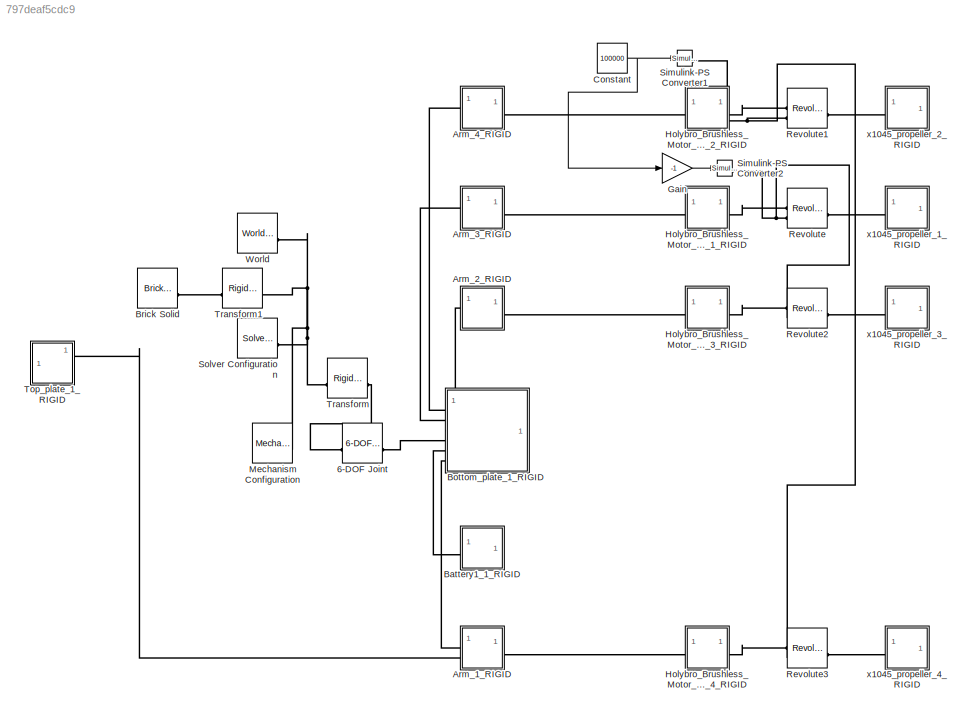
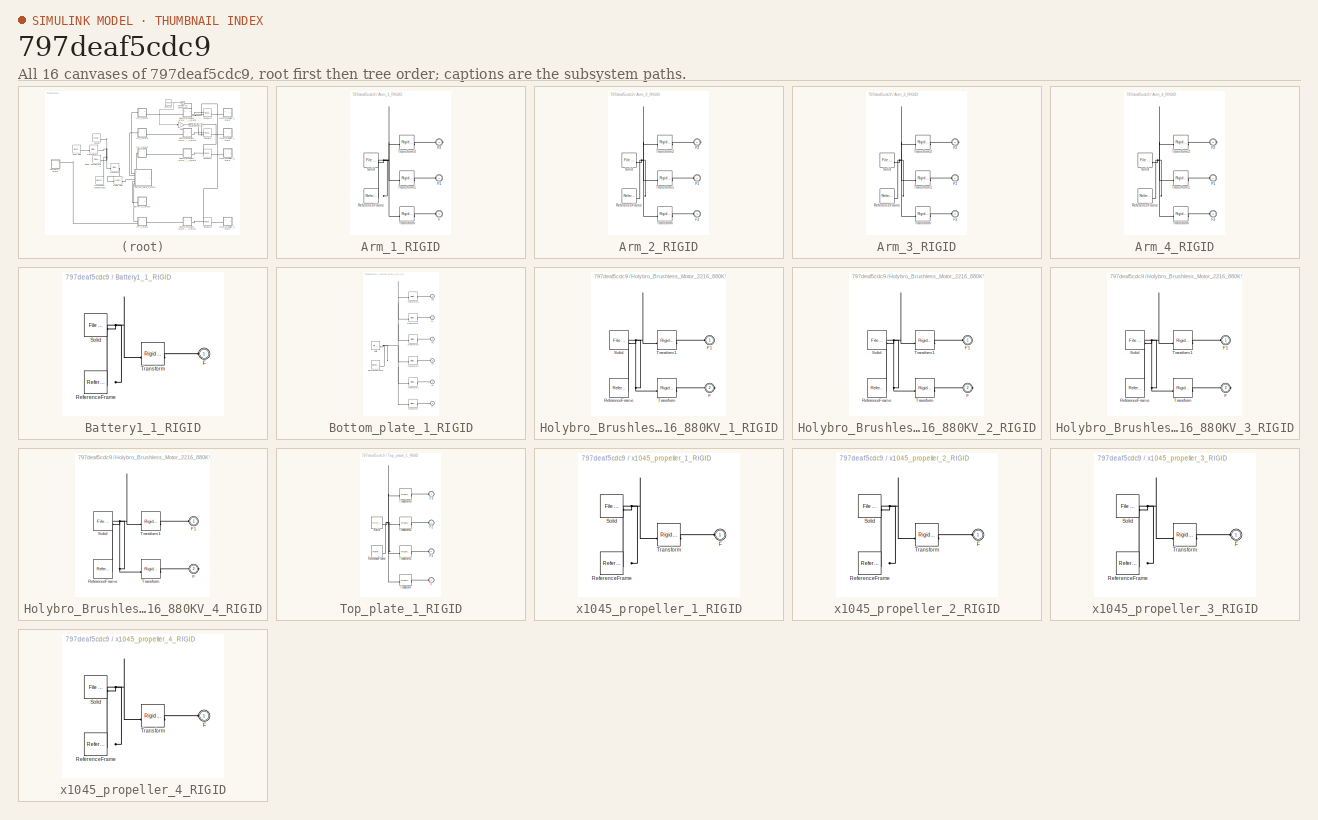
[diagram: thumbnail index - all 16 canvases of the model, root first then tree order]
MODEL slx_797deaf5cdc9
KIND model
CONFIG AbsTol = auto
CONFIG EnableMultiTasking = off
CONFIG FixedStep = auto
CONFIG MaxStep = auto
CONFIG MinStep = auto
CONFIG RelTol = 1e-3
CONFIG SampleTimeConstraint = Unconstrained
CONFIG SolverName = VariableStepAuto
CONFIG StartTime = 0.0
CONFIG StopTime = 10.0
WORKSPACE source: external: MATLAB File  (data not in archive)
BLOCK [Reference] 6-DOF Joint  REF=sm_lib/Joints/6-DOF Joint
  SourceBlock = sm_lib/Joints/6-DOF Joint
  SourceType = 6-DOF Joint
BLOCK [SubSystem] Arm_1_RIGID
BLOCK [PMIOPort] Arm_1_RIGID/F
  Port = 2
  Side = Left
BLOCK [PMIOPort] Arm_1_RIGID/F1
  Side = Left
BLOCK [PMIOPort] Arm_1_RIGID/F2
  Port = 3
  Side = Right
BLOCK [Reference] Arm_1_RIGID/ReferenceFrame  REF=sm_lib/Frames and
Transforms/Reference
Frame
  SourceBlock = sm_lib/Frames and\nTransforms/Reference\nFrame
  SourceType = Reference\nFrame
BLOCK [Reference] Arm_1_RIGID/Solid  REF=sm_lib/Body Elements/File Solid
  SourceBlock = sm_lib/Body Elements/File Solid
  SourceType = File Solid
BLOCK [Reference] Arm_1_RIGID/Transform  REF=sm_lib/Frames and
Transforms/Rigid
Transform
  SourceBlock = sm_lib/Frames and\nTransforms/Rigid\nTransform
  SourceType = Rigid\nTransform
BLOCK [Reference] Arm_1_RIGID/Transform1  REF=sm_lib/Frames and
Transforms/Rigid
Transform
  SourceBlock = sm_lib/Frames and\nTransforms/Rigid\nTransform
  SourceType = Rigid\nTransform
BLOCK [Reference] Arm_1_RIGID/Transform2  REF=sm_lib/Frames and
Transforms/Rigid
Transform
  SourceBlock = sm_lib/Frames and\nTransforms/Rigid\nTransform
  SourceType = Rigid\nTransform
BLOCK [SubSystem] Arm_2_RIGID
BLOCK [PMIOPort] Arm_2_RIGID/F1
  Side = Left
BLOCK [PMIOPort] Arm_2_RIGID/F2
  Port = 2
  Side = Right
BLOCK [PMIOPort] Arm_2_RIGID/F3
  Port = 3
  Side = Left
BLOCK [Reference] Arm_2_RIGID/ReferenceFrame  REF=sm_lib/Frames and
Transforms/Reference
Frame
  SourceBlock = sm_lib/Frames and\nTransforms/Reference\nFrame
  SourceType = Reference\nFrame
BLOCK [Reference] Arm_2_RIGID/Solid  REF=sm_lib/Body Elements/File Solid
  SourceBlock = sm_lib/Body Elements/File Solid
  SourceType = File Solid
BLOCK [Reference] Arm_2_RIGID/Transform  REF=sm_lib/Frames and
Transforms/Rigid
Transform
  SourceBlock = sm_lib/Frames and\nTransforms/Rigid\nTransform
  SourceType = Rigid\nTransform
BLOCK [Reference] Arm_2_RIGID/Transform1  REF=sm_lib/Frames and
Transforms/Rigid
Transform
  SourceBlock = sm_lib/Frames and\nTransforms/Rigid\nTransform
  SourceType = Rigid\nTransform
BLOCK [Reference] Arm_2_RIGID/Transform2  REF=sm_lib/Frames and
Transforms/Rigid
Transform
  SourceBlock = sm_lib/Frames and\nTransforms/Rigid\nTransform
  SourceType = Rigid\nTransform
BLOCK [SubSystem] Arm_3_RIGID
BLOCK [PMIOPort] Arm_3_RIGID/F1
  Side = Left
BLOCK [PMIOPort] Arm_3_RIGID/F2
  Port = 2
  Side = Right
BLOCK [PMIOPort] Arm_3_RIGID/F3
  Port = 3
  Side = Left
BLOCK [Reference] Arm_3_RIGID/ReferenceFrame  REF=sm_lib/Frames and
Transforms/Reference
Frame
  SourceBlock = sm_lib/Frames and\nTransforms/Reference\nFrame
  SourceType = Reference\nFrame
BLOCK [Reference] Arm_3_RIGID/Solid  REF=sm_lib/Body Elements/File Solid
  SourceBlock = sm_lib/Body Elements/File Solid
  SourceType = File Solid
BLOCK [Reference] Arm_3_RIGID/Transform  REF=sm_lib/Frames and
Transforms/Rigid
Transform
  SourceBlock = sm_lib/Frames and\nTransforms/Rigid\nTransform
  SourceType = Rigid\nTransform
BLOCK [Reference] Arm_3_RIGID/Transform1  REF=sm_lib/Frames and
Transforms/Rigid
Transform
  SourceBlock = sm_lib/Frames and\nTransforms/Rigid\nTransform
  SourceType = Rigid\nTransform
BLOCK [Reference] Arm_3_RIGID/Transform2  REF=sm_lib/Frames and
Transforms/Rigid
Transform
  SourceBlock = sm_lib/Frames and\nTransforms/Rigid\nTransform
  SourceType = Rigid\nTransform
BLOCK [SubSystem] Arm_4_RIGID
BLOCK [PMIOPort] Arm_4_RIGID/F1
  Side = Left
BLOCK [PMIOPort] Arm_4_RIGID/F2
  Port = 2
  Side = Right
BLOCK [PMIOPort] Arm_4_RIGID/F3
  Port = 3
  Side = Left
BLOCK [Reference] Arm_4_RIGID/ReferenceFrame  REF=sm_lib/Frames and
Transforms/Reference
Frame
  SourceBlock = sm_lib/Frames and\nTransforms/Reference\nFrame
  SourceType = Reference\nFrame
BLOCK [Reference] Arm_4_RIGID/Solid  REF=sm_lib/Body Elements/File Solid
  SourceBlock = sm_lib/Body Elements/File Solid
  SourceType = File Solid
BLOCK [Reference] Arm_4_RIGID/Transform  REF=sm_lib/Frames and
Transforms/Rigid
Transform
  SourceBlock = sm_lib/Frames and\nTransforms/Rigid\nTransform
  SourceType = Rigid\nTransform
BLOCK [Reference] Arm_4_RIGID/Transform1  REF=sm_lib/Frames and
Transforms/Rigid
Transform
  SourceBlock = sm_lib/Frames and\nTransforms/Rigid\nTransform
  SourceType = Rigid\nTransform
BLOCK [Reference] Arm_4_RIGID/Transform2  REF=sm_lib/Frames and
Transforms/Rigid
Transform
  SourceBlock = sm_lib/Frames and\nTransforms/Rigid\nTransform
  SourceType = Rigid\nTransform
BLOCK [SubSystem] Battery1_1_RIGID
BLOCK [PMIOPort] Battery1_1_RIGID/F
  Side = Left
BLOCK [Reference] Battery1_1_RIGID/ReferenceFrame  REF=sm_lib/Frames and
Transforms/Reference
Frame
  SourceBlock = sm_lib/Frames and\nTransforms/Reference\nFrame
  SourceType = Reference\nFrame
BLOCK [Reference] Battery1_1_RIGID/Solid  REF=sm_lib/Body Elements/File Solid
  SourceBlock = sm_lib/Body Elements/File Solid
  SourceType = File Solid
BLOCK [Reference] Battery1_1_RIGID/Transform  REF=sm_lib/Frames and
Transforms/Rigid
Transform
  SourceBlock = sm_lib/Frames and\nTransforms/Rigid\nTransform
  SourceType = Rigid\nTransform
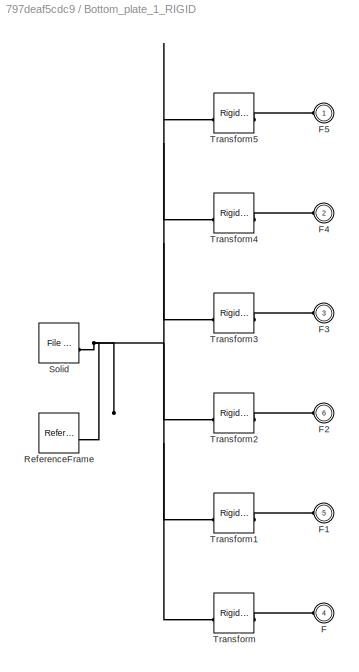
BLOCK [SubSystem] Bottom_plate_1_RIGID
BLOCK [PMIOPort] Bottom_plate_1_RIGID/F
  Port = 4
  Side = Left
BLOCK [PMIOPort] Bottom_plate_1_RIGID/F1
  Port = 5
  Side = Left
BLOCK [PMIOPort] Bottom_plate_1_RIGID/F2
  Port = 6
  Side = Left
BLOCK [PMIOPort] Bottom_plate_1_RIGID/F3
  Port = 3
  Side = Left
BLOCK [PMIOPort] Bottom_plate_1_RIGID/F4
  Port = 2
  Side = Left
BLOCK [PMIOPort] Bottom_plate_1_RIGID/F5
  Side = Left
BLOCK [Reference] Bottom_plate_1_RIGID/ReferenceFrame  REF=sm_lib/Frames and
Transforms/Reference
Frame
  SourceBlock = sm_lib/Frames and\nTransforms/Reference\nFrame
  SourceType = Reference\nFrame
BLOCK [Reference] Bottom_plate_1_RIGID/Solid  REF=sm_lib/Body Elements/File Solid
  SourceBlock = sm_lib/Body Elements/File Solid
  SourceType = File Solid
BLOCK [Reference] Bottom_plate_1_RIGID/Transform  REF=sm_lib/Frames and
Transforms/Rigid
Transform
  SourceBlock = sm_lib/Frames and\nTransforms/Rigid\nTransform
  SourceType = Rigid\nTransform
BLOCK [Reference] Bottom_plate_1_RIGID/Transform1  REF=sm_lib/Frames and
Transforms/Rigid
Transform
  SourceBlock = sm_lib/Frames and\nTransforms/Rigid\nTransform
  SourceType = Rigid\nTransform
BLOCK [Reference] Bottom_plate_1_RIGID/Transform2  REF=sm_lib/Frames and
Transforms/Rigid
Transform
  SourceBlock = sm_lib/Frames and\nTransforms/Rigid\nTransform
  SourceType = Rigid\nTransform
BLOCK [Reference] Bottom_plate_1_RIGID/Transform3  REF=sm_lib/Frames and
Transforms/Rigid
Transform
  SourceBlock = sm_lib/Frames and\nTransforms/Rigid\nTransform
  SourceType = Rigid\nTransform
BLOCK [Reference] Bottom_plate_1_RIGID/Transform4  REF=sm_lib/Frames and
Transforms/Rigid
Transform
  SourceBlock = sm_lib/Frames and\nTransforms/Rigid\nTransform
  SourceType = Rigid\nTransform
BLOCK [Reference] Bottom_plate_1_RIGID/Transform5  REF=sm_lib/Frames and
Transforms/Rigid
Transform
  SourceBlock = sm_lib/Frames and\nTransforms/Rigid\nTransform
  SourceType = Rigid\nTransform
BLOCK [Reference] Brick Solid  REF=sm_lib/Body Elements/Brick Solid
  SourceBlock = sm_lib/Body Elements/Brick Solid
  SourceType = Brick Solid
BLOCK [Constant] Constant
  Value = 100000
BLOCK [Gain] Gain
  Gain = -1
BLOCK [SubSystem] Holybro_Brushless_Motor_2216_880KV_1_RIGID
BLOCK [PMIOPort] Holybro_Brushless_Motor_2216_880KV_1_RIGID/F
  Port = 2
  Side = Right
BLOCK [PMIOPort] Holybro_Brushless_Motor_2216_880KV_1_RIGID/F1
  Side = Left
BLOCK [Reference] Holybro_Brushless_Motor_2216_880KV_1_RIGID/ReferenceFrame  REF=sm_lib/Frames and
Transforms/Reference
Frame
  SourceBlock = sm_lib/Frames and\nTransforms/Reference\nFrame
  SourceType = Reference\nFrame
BLOCK [Reference] Holybro_Brushless_Motor_2216_880KV_1_RIGID/Solid  REF=sm_lib/Body Elements/File Solid
  SourceBlock = sm_lib/Body Elements/File Solid
  SourceType = File Solid
BLOCK [Reference] Holybro_Brushless_Motor_2216_880KV_1_RIGID/Transform  REF=sm_lib/Frames and
Transforms/Rigid
Transform
  SourceBlock = sm_lib/Frames and\nTransforms/Rigid\nTransform
  SourceType = Rigid\nTransform
BLOCK [Reference] Holybro_Brushless_Motor_2216_880KV_1_RIGID/Transform1  REF=sm_lib/Frames and
Transforms/Rigid
Transform
  SourceBlock = sm_lib/Frames and\nTransforms/Rigid\nTransform
  SourceType = Rigid\nTransform
BLOCK [SubSystem] Holybro_Brushless_Motor_2216_880KV_2_RIGID
BLOCK [PMIOPort] Holybro_Brushless_Motor_2216_880KV_2_RIGID/F
  Port = 2
  Side = Right
BLOCK [PMIOPort] Holybro_Brushless_Motor_2216_880KV_2_RIGID/F1
  Side = Left
BLOCK [Reference] Holybro_Brushless_Motor_2216_880KV_2_RIGID/ReferenceFrame  REF=sm_lib/Frames and
Transforms/Reference
Frame
  SourceBlock = sm_lib/Frames and\nTransforms/Reference\nFrame
  SourceType = Reference\nFrame
BLOCK [Reference] Holybro_Brushless_Motor_2216_880KV_2_RIGID/Solid  REF=sm_lib/Body Elements/File Solid
  SourceBlock = sm_lib/Body Elements/File Solid
  SourceType = File Solid
BLOCK [Reference] Holybro_Brushless_Motor_2216_880KV_2_RIGID/Transform  REF=sm_lib/Frames and
Transforms/Rigid
Transform
  SourceBlock = sm_lib/Frames and\nTransforms/Rigid\nTransform
  SourceType = Rigid\nTransform
BLOCK [Reference] Holybro_Brushless_Motor_2216_880KV_2_RIGID/Transform1  REF=sm_lib/Frames and
Transforms/Rigid
Transform
  SourceBlock = sm_lib/Frames and\nTransforms/Rigid\nTransform
  SourceType = Rigid\nTransform
BLOCK [SubSystem] Holybro_Brushless_Motor_2216_880KV_3_RIGID
BLOCK [PMIOPort] Holybro_Brushless_Motor_2216_880KV_3_RIGID/F
  Port = 2
  Side = Right
BLOCK [PMIOPort] Holybro_Brushless_Motor_2216_880KV_3_RIGID/F1
  Side = Left
BLOCK [Reference] Holybro_Brushless_Motor_2216_880KV_3_RIGID/ReferenceFrame  REF=sm_lib/Frames and
Transforms/Reference
Frame
  SourceBlock = sm_lib/Frames and\nTransforms/Reference\nFrame
  SourceType = Reference\nFrame
BLOCK [Reference] Holybro_Brushless_Motor_2216_880KV_3_RIGID/Solid  REF=sm_lib/Body Elements/File Solid
  SourceBlock = sm_lib/Body Elements/File Solid
  SourceType = File Solid
BLOCK [Reference] Holybro_Brushless_Motor_2216_880KV_3_RIGID/Transform  REF=sm_lib/Frames and
Transforms/Rigid
Transform
  SourceBlock = sm_lib/Frames and\nTransforms/Rigid\nTransform
  SourceType = Rigid\nTransform
BLOCK [Reference] Holybro_Brushless_Motor_2216_880KV_3_RIGID/Transform1  REF=sm_lib/Frames and
Transforms/Rigid
Transform
  SourceBlock = sm_lib/Frames and\nTransforms/Rigid\nTransform
  SourceType = Rigid\nTransform
BLOCK [SubSystem] Holybro_Brushless_Motor_2216_880KV_4_RIGID
BLOCK [PMIOPort] Holybro_Brushless_Motor_2216_880KV_4_RIGID/F
  Port = 2
  Side = Right
BLOCK [PMIOPort] Holybro_Brushless_Motor_2216_880KV_4_RIGID/F1
  Side = Left
BLOCK [Reference] Holybro_Brushless_Motor_2216_880KV_4_RIGID/ReferenceFrame  REF=sm_lib/Frames and
Transforms/Reference
Frame
  SourceBlock = sm_lib/Frames and\nTransforms/Reference\nFrame
  SourceType = Reference\nFrame
BLOCK [Reference] Holybro_Brushless_Motor_2216_880KV_4_RIGID/Solid  REF=sm_lib/Body Elements/File Solid
  SourceBlock = sm_lib/Body Elements/File Solid
  SourceType = File Solid
BLOCK [Reference] Holybro_Brushless_Motor_2216_880KV_4_RIGID/Transform  REF=sm_lib/Frames and
Transforms/Rigid
Transform
  SourceBlock = sm_lib/Frames and\nTransforms/Rigid\nTransform
  SourceType = Rigid\nTransform
BLOCK [Reference] Holybro_Brushless_Motor_2216_880KV_4_RIGID/Transform1  REF=sm_lib/Frames and
Transforms/Rigid
Transform
  SourceBlock = sm_lib/Frames and\nTransforms/Rigid\nTransform
  SourceType = Rigid\nTransform
BLOCK [Reference] Mechanism Configuration  REF=sm_lib/Utilities/Mechanism
Configuration
  SourceBlock = sm_lib/Utilities/Mechanism\nConfiguration
  SourceType = Mechanism\nConfiguration
BLOCK [Reference] Revolute  REF=sm_lib/Joints/Revolute Joint
  SourceBlock = sm_lib/Joints/Revolute Joint
  SourceType = Revolute Joint
BLOCK [Reference] Revolute1  REF=sm_lib/Joints/Revolute Joint
  SourceBlock = sm_lib/Joints/Revolute Joint
  SourceType = Revolute Joint
BLOCK [Reference] Revolute2  REF=sm_lib/Joints/Revolute Joint
  SourceBlock = sm_lib/Joints/Revolute Joint
  SourceType = Revolute Joint
BLOCK [Reference] Revolute3  REF=sm_lib/Joints/Revolute Joint
  SourceBlock = sm_lib/Joints/Revolute Joint
  SourceType = Revolute Joint
BLOCK [Reference] Simulink-PS Converter1  REF=nesl_utility/Simulink-PS
Converter
  SourceBlock = nesl_utility/Simulink-PS\nConverter
  SourceType = Simulink-PS\nConverter
BLOCK [Reference] Simulink-PS Converter2  REF=nesl_utility/Simulink-PS
Converter
  SourceBlock = nesl_utility/Simulink-PS\nConverter
  SourceType = Simulink-PS\nConverter
BLOCK [Reference] Solver Configuration  REF=nesl_utility/Solver
Configuration
  SourceBlock = nesl_utility/Solver\nConfiguration
  SourceType = Solver\nConfiguration
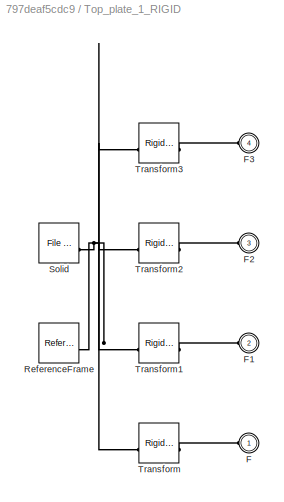
BLOCK [SubSystem] Top_plate_1_RIGID
  NameLocation = top
BLOCK [PMIOPort] Top_plate_1_RIGID/F
  Side = Left
BLOCK [PMIOPort] Top_plate_1_RIGID/F1
  Port = 2
  Side = Left
BLOCK [PMIOPort] Top_plate_1_RIGID/F2
  Port = 3
  Side = Left
BLOCK [PMIOPort] Top_plate_1_RIGID/F3
  Port = 4
  Side = Left
BLOCK [Reference] Top_plate_1_RIGID/ReferenceFrame  REF=sm_lib/Frames and
Transforms/Reference
Frame
  SourceBlock = sm_lib/Frames and\nTransforms/Reference\nFrame
  SourceType = Reference\nFrame
BLOCK [Reference] Top_plate_1_RIGID/Solid  REF=sm_lib/Body Elements/File Solid
  SourceBlock = sm_lib/Body Elements/File Solid
  SourceType = File Solid
BLOCK [Reference] Top_plate_1_RIGID/Transform  REF=sm_lib/Frames and
Transforms/Rigid
Transform
  SourceBlock = sm_lib/Frames and\nTransforms/Rigid\nTransform
  SourceType = Rigid\nTransform
BLOCK [Reference] Top_plate_1_RIGID/Transform1  REF=sm_lib/Frames and
Transforms/Rigid
Transform
  SourceBlock = sm_lib/Frames and\nTransforms/Rigid\nTransform
  SourceType = Rigid\nTransform
BLOCK [Reference] Top_plate_1_RIGID/Transform2  REF=sm_lib/Frames and
Transforms/Rigid
Transform
  SourceBlock = sm_lib/Frames and\nTransforms/Rigid\nTransform
  SourceType = Rigid\nTransform
BLOCK [Reference] Top_plate_1_RIGID/Transform3  REF=sm_lib/Frames and
Transforms/Rigid
Transform
  SourceBlock = sm_lib/Frames and\nTransforms/Rigid\nTransform
  SourceType = Rigid\nTransform
BLOCK [Reference] Transform  REF=sm_lib/Frames and
Transforms/Rigid
Transform
  SourceBlock = sm_lib/Frames and\nTransforms/Rigid\nTransform
  SourceType = Rigid\nTransform
BLOCK [Reference] Transform1  REF=sm_lib/Frames and
Transforms/Rigid
Transform
  SourceBlock = sm_lib/Frames and\nTransforms/Rigid\nTransform
  SourceType = Rigid\nTransform
BLOCK [Reference] World  REF=sm_lib/Frames and
Transforms/World Frame
  SourceBlock = sm_lib/Frames and\nTransforms/World Frame
  SourceType = World Frame
BLOCK [SubSystem] x1045_propeller_1_RIGID
BLOCK [PMIOPort] x1045_propeller_1_RIGID/F
  Side = Left
BLOCK [Reference] x1045_propeller_1_RIGID/ReferenceFrame  REF=sm_lib/Frames and
Transforms/Reference
Frame
  SourceBlock = sm_lib/Frames and\nTransforms/Reference\nFrame
  SourceType = Reference\nFrame
BLOCK [Reference] x1045_propeller_1_RIGID/Solid  REF=sm_lib/Body Elements/File Solid
  SourceBlock = sm_lib/Body Elements/File Solid
  SourceType = File Solid
BLOCK [Reference] x1045_propeller_1_RIGID/Transform  REF=sm_lib/Frames and
Transforms/Rigid
Transform
  SourceBlock = sm_lib/Frames and\nTransforms/Rigid\nTransform
  SourceType = Rigid\nTransform
BLOCK [SubSystem] x1045_propeller_2_RIGID
BLOCK [PMIOPort] x1045_propeller_2_RIGID/F
  Side = Left
BLOCK [Reference] x1045_propeller_2_RIGID/ReferenceFrame  REF=sm_lib/Frames and
Transforms/Reference
Frame
  SourceBlock = sm_lib/Frames and\nTransforms/Reference\nFrame
  SourceType = Reference\nFrame
BLOCK [Reference] x1045_propeller_2_RIGID/Solid  REF=sm_lib/Body Elements/File Solid
  SourceBlock = sm_lib/Body Elements/File Solid
  SourceType = File Solid
BLOCK [Reference] x1045_propeller_2_RIGID/Transform  REF=sm_lib/Frames and
Transforms/Rigid
Transform
  SourceBlock = sm_lib/Frames and\nTransforms/Rigid\nTransform
  SourceType = Rigid\nTransform
BLOCK [SubSystem] x1045_propeller_3_RIGID
BLOCK [PMIOPort] x1045_propeller_3_RIGID/F
  Side = Left
BLOCK [Reference] x1045_propeller_3_RIGID/ReferenceFrame  REF=sm_lib/Frames and
Transforms/Reference
Frame
  SourceBlock = sm_lib/Frames and\nTransforms/Reference\nFrame
  SourceType = Reference\nFrame
BLOCK [Reference] x1045_propeller_3_RIGID/Solid  REF=sm_lib/Body Elements/File Solid
  SourceBlock = sm_lib/Body Elements/File Solid
  SourceType = File Solid
BLOCK [Reference] x1045_propeller_3_RIGID/Transform  REF=sm_lib/Frames and
Transforms/Rigid
Transform
  SourceBlock = sm_lib/Frames and\nTransforms/Rigid\nTransform
  SourceType = Rigid\nTransform
BLOCK [SubSystem] x1045_propeller_4_RIGID
BLOCK [PMIOPort] x1045_propeller_4_RIGID/F
  Side = Left
BLOCK [Reference] x1045_propeller_4_RIGID/ReferenceFrame  REF=sm_lib/Frames and
Transforms/Reference
Frame
  SourceBlock = sm_lib/Frames and\nTransforms/Reference\nFrame
  SourceType = Reference\nFrame
BLOCK [Reference] x1045_propeller_4_RIGID/Solid  REF=sm_lib/Body Elements/File Solid
  SourceBlock = sm_lib/Body Elements/File Solid
  SourceType = File Solid
BLOCK [Reference] x1045_propeller_4_RIGID/Transform  REF=sm_lib/Frames and
Transforms/Rigid
Transform
  SourceBlock = sm_lib/Frames and\nTransforms/Rigid\nTransform
  SourceType = Rigid\nTransform
NET Constant:1 -> Gain:1, Simulink-PS Converter1:1
LINE Gain:1 -> Simulink-PS Converter2:1
PLINE 6-DOF Joint:LConn1 -- Transform:RConn1
PLINE 6-DOF Joint:RConn1 -- Bottom_plate_1_RIGID:LConn4
PLINE Arm_1_RIGID/F1:RConn1 -- Arm_1_RIGID/Transform1:RConn1
PLINE Arm_1_RIGID/F2:RConn1 -- Arm_1_RIGID/Transform2:RConn1
PLINE Arm_1_RIGID/F:RConn1 -- Arm_1_RIGID/Transform:RConn1
PNET net1: Arm_1_RIGID/ReferenceFrame:RConn1 -- Arm_1_RIGID/Solid:RConn1 -- Arm_1_RIGID/Transform1:LConn1 -- Arm_1_RIGID/Transform2:LConn1 -- Arm_1_RIGID/Transform:LConn1
PLINE Arm_1_RIGID:LConn1 -- Bottom_plate_1_RIGID:LConn6
PLINE Arm_1_RIGID:LConn2 -- Top_plate_1_RIGID:LConn1
PLINE Arm_1_RIGID:RConn1 -- Holybro_Brushless_Motor_2216_880KV_4_RIGID:LConn1
PLINE Arm_2_RIGID/F1:RConn1 -- Arm_2_RIGID/Transform1:RConn1
PLINE Arm_2_RIGID/F2:RConn1 -- Arm_2_RIGID/Transform2:RConn1
PLINE Arm_2_RIGID/F3:RConn1 -- Arm_2_RIGID/Transform:RConn1
PNET net2: Arm_2_RIGID/ReferenceFrame:RConn1 -- Arm_2_RIGID/Solid:RConn1 -- Arm_2_RIGID/Transform1:LConn1 -- Arm_2_RIGID/Transform2:LConn1 -- Arm_2_RIGID/Transform:LConn1
PLINE Arm_2_RIGID:LConn1 -- Bottom_plate_1_RIGID:LConn3
PLINE Arm_2_RIGID:RConn1 -- Holybro_Brushless_Motor_2216_880KV_3_RIGID:LConn1
PLINE Arm_3_RIGID/F1:RConn1 -- Arm_3_RIGID/Transform1:RConn1
PLINE Arm_3_RIGID/F2:RConn1 -- Arm_3_RIGID/Transform2:RConn1
PLINE Arm_3_RIGID/F3:RConn1 -- Arm_3_RIGID/Transform:RConn1
PNET net3: Arm_3_RIGID/ReferenceFrame:RConn1 -- Arm_3_RIGID/Solid:RConn1 -- Arm_3_RIGID/Transform1:LConn1 -- Arm_3_RIGID/Transform2:LConn1 -- Arm_3_RIGID/Transform:LConn1
PLINE Arm_3_RIGID:LConn1 -- Bottom_plate_1_RIGID:LConn2
PLINE Arm_3_RIGID:RConn1 -- Holybro_Brushless_Motor_2216_880KV_1_RIGID:LConn1
PLINE Arm_4_RIGID/F1:RConn1 -- Arm_4_RIGID/Transform1:RConn1
PLINE Arm_4_RIGID/F2:RConn1 -- Arm_4_RIGID/Transform2:RConn1
PLINE Arm_4_RIGID/F3:RConn1 -- Arm_4_RIGID/Transform:RConn1
PNET net4: Arm_4_RIGID/ReferenceFrame:RConn1 -- Arm_4_RIGID/Solid:RConn1 -- Arm_4_RIGID/Transform1:LConn1 -- Arm_4_RIGID/Transform2:LConn1 -- Arm_4_RIGID/Transform:LConn1
PLINE Arm_4_RIGID:LConn1 -- Bottom_plate_1_RIGID:LConn1
PLINE Arm_4_RIGID:RConn1 -- Holybro_Brushless_Motor_2216_880KV_2_RIGID:LConn1
PLINE Battery1_1_RIGID/F:RConn1 -- Battery1_1_RIGID/Transform:RConn1
PNET net5: Battery1_1_RIGID/ReferenceFrame:RConn1 -- Battery1_1_RIGID/Solid:RConn1 -- Battery1_1_RIGID/Transform:LConn1
PLINE Battery1_1_RIGID:LConn1 -- Bottom_plate_1_RIGID:LConn5
PLINE Bottom_plate_1_RIGID/F1:RConn1 -- Bottom_plate_1_RIGID/Transform1:RConn1
PLINE Bottom_plate_1_RIGID/F2:RConn1 -- Bottom_plate_1_RIGID/Transform2:RConn1
PLINE Bottom_plate_1_RIGID/F3:RConn1 -- Bottom_plate_1_RIGID/Transform3:RConn1
PLINE Bottom_plate_1_RIGID/F4:RConn1 -- Bottom_plate_1_RIGID/Transform4:RConn1
PLINE Bottom_plate_1_RIGID/F5:RConn1 -- Bottom_plate_1_RIGID/Transform5:RConn1
PLINE Bottom_plate_1_RIGID/F:RConn1 -- Bottom_plate_1_RIGID/Transform:RConn1
PNET net6: Bottom_plate_1_RIGID/ReferenceFrame:RConn1 -- Bottom_plate_1_RIGID/Solid:RConn1 -- Bottom_plate_1_RIGID/Transform1:LConn1 -- Bottom_plate_1_RIGID/Transform2:LConn1 -- Bottom_plate_1_RIGID/Transform3:LConn1 -- Bottom_plate_1_RIGID/Transform4:LConn1 -- Bottom_plate_1_RIGID/Transform5:LConn1 -- Bottom_plate_1_RIGID/Transform:LConn1
PLINE Brick Solid:RConn1 -- Transform1:LConn1
PLINE Holybro_Brushless_Motor_2216_880KV_1_RIGID/F1:RConn1 -- Holybro_Brushless_Motor_2216_880KV_1_RIGID/Transform1:RConn1
PLINE Holybro_Brushless_Motor_2216_880KV_1_RIGID/F:RConn1 -- Holybro_Brushless_Motor_2216_880KV_1_RIGID/Transform:RConn1
PNET net7: Holybro_Brushless_Motor_2216_880KV_1_RIGID/ReferenceFrame:RConn1 -- Holybro_Brushless_Motor_2216_880KV_1_RIGID/Solid:RConn1 -- Holybro_Brushless_Motor_2216_880KV_1_RIGID/Transform1:LConn1 -- Holybro_Brushless_Motor_2216_880KV_1_RIGID/Transform:LConn1
PLINE Holybro_Brushless_Motor_2216_880KV_1_RIGID:RConn1 -- Revolute:LConn1
PLINE Holybro_Brushless_Motor_2216_880KV_2_RIGID/F1:RConn1 -- Holybro_Brushless_Motor_2216_880KV_2_RIGID/Transform1:RConn1
PLINE Holybro_Brushless_Motor_2216_880KV_2_RIGID/F:RConn1 -- Holybro_Brushless_Motor_2216_880KV_2_RIGID/Transform:RConn1
PNET net8: Holybro_Brushless_Motor_2216_880KV_2_RIGID/ReferenceFrame:RConn1 -- Holybro_Brushless_Motor_2216_880KV_2_RIGID/Solid:RConn1 -- Holybro_Brushless_Motor_2216_880KV_2_RIGID/Transform1:LConn1 -- Holybro_Brushless_Motor_2216_880KV_2_RIGID/Transform:LConn1
PLINE Holybro_Brushless_Motor_2216_880KV_2_RIGID:RConn1 -- Revolute1:LConn1
PLINE Holybro_Brushless_Motor_2216_880KV_3_RIGID/F1:RConn1 -- Holybro_Brushless_Motor_2216_880KV_3_RIGID/Transform1:RConn1
PLINE Holybro_Brushless_Motor_2216_880KV_3_RIGID/F:RConn1 -- Holybro_Brushless_Motor_2216_880KV_3_RIGID/Transform:RConn1
PNET net9: Holybro_Brushless_Motor_2216_880KV_3_RIGID/ReferenceFrame:RConn1 -- Holybro_Brushless_Motor_2216_880KV_3_RIGID/Solid:RConn1 -- Holybro_Brushless_Motor_2216_880KV_3_RIGID/Transform1:LConn1 -- Holybro_Brushless_Motor_2216_880KV_3_RIGID/Transform:LConn1
PLINE Holybro_Brushless_Motor_2216_880KV_3_RIGID:RConn1 -- Revolute2:LConn1
PLINE Holybro_Brushless_Motor_2216_880KV_4_RIGID/F1:RConn1 -- Holybro_Brushless_Motor_2216_880KV_4_RIGID/Transform1:RConn1
PLINE Holybro_Brushless_Motor_2216_880KV_4_RIGID/F:RConn1 -- Holybro_Brushless_Motor_2216_880KV_4_RIGID/Transform:RConn1
PNET net10: Holybro_Brushless_Motor_2216_880KV_4_RIGID/ReferenceFrame:RConn1 -- Holybro_Brushless_Motor_2216_880KV_4_RIGID/Solid:RConn1 -- Holybro_Brushless_Motor_2216_880KV_4_RIGID/Transform1:LConn1 -- Holybro_Brushless_Motor_2216_880KV_4_RIGID/Transform:LConn1
PLINE Holybro_Brushless_Motor_2216_880KV_4_RIGID:RConn1 -- Revolute3:LConn1
PNET net11: Mechanism Configuration:RConn1 -- Solver Configuration:RConn1 -- Transform1:RConn1 -- Transform:LConn1 -- World:RConn1
PNET net12: Revolute1:LConn2 -- Revolute3:LConn2 -- Simulink-PS Converter1:RConn1
PLINE Revolute1:RConn1 -- x1045_propeller_2_RIGID:LConn1
PNET net13: Revolute2:LConn2 -- Revolute:LConn2 -- Simulink-PS Converter2:RConn1
PLINE Revolute2:RConn1 -- x1045_propeller_3_RIGID:LConn1
PLINE Revolute3:RConn1 -- x1045_propeller_4_RIGID:LConn1
PLINE Revolute:RConn1 -- x1045_propeller_1_RIGID:LConn1
PLINE Top_plate_1_RIGID/F1:RConn1 -- Top_plate_1_RIGID/Transform1:RConn1
PLINE Top_plate_1_RIGID/F2:RConn1 -- Top_plate_1_RIGID/Transform2:RConn1
PLINE Top_plate_1_RIGID/F3:RConn1 -- Top_plate_1_RIGID/Transform3:RConn1
PLINE Top_plate_1_RIGID/F:RConn1 -- Top_plate_1_RIGID/Transform:RConn1
PNET net14: Top_plate_1_RIGID/ReferenceFrame:RConn1 -- Top_plate_1_RIGID/Solid:RConn1 -- Top_plate_1_RIGID/Transform1:LConn1 -- Top_plate_1_RIGID/Transform2:LConn1 -- Top_plate_1_RIGID/Transform3:LConn1 -- Top_plate_1_RIGID/Transform:LConn1
PLINE x1045_propeller_1_RIGID/F:RConn1 -- x1045_propeller_1_RIGID/Transform:RConn1
PNET net15: x1045_propeller_1_RIGID/ReferenceFrame:RConn1 -- x1045_propeller_1_RIGID/Solid:RConn1 -- x1045_propeller_1_RIGID/Transform:LConn1
PLINE x1045_propeller_2_RIGID/F:RConn1 -- x1045_propeller_2_RIGID/Transform:RConn1
PNET net16: x1045_propeller_2_RIGID/ReferenceFrame:RConn1 -- x1045_propeller_2_RIGID/Solid:RConn1 -- x1045_propeller_2_RIGID/Transform:LConn1
PLINE x1045_propeller_3_RIGID/F:RConn1 -- x1045_propeller_3_RIGID/Transform:RConn1
PNET net17: x1045_propeller_3_RIGID/ReferenceFrame:RConn1 -- x1045_propeller_3_RIGID/Solid:RConn1 -- x1045_propeller_3_RIGID/Transform:LConn1
PLINE x1045_propeller_4_RIGID/F:RConn1 -- x1045_propeller_4_RIGID/Transform:RConn1
PNET net18: x1045_propeller_4_RIGID/ReferenceFrame:RConn1 -- x1045_propeller_4_RIGID/Solid:RConn1 -- x1045_propeller_4_RIGID/Transform:LConn1
note: NET lines group one-source signal fan-out (src -> all destinations, sorted); 1:1 wires keep LINE; PNET lines group multi-terminal physical nets as a canonical sorted terminal list (undirected conserving connections); 2-terminal nets keep the pairwise PLINE form
